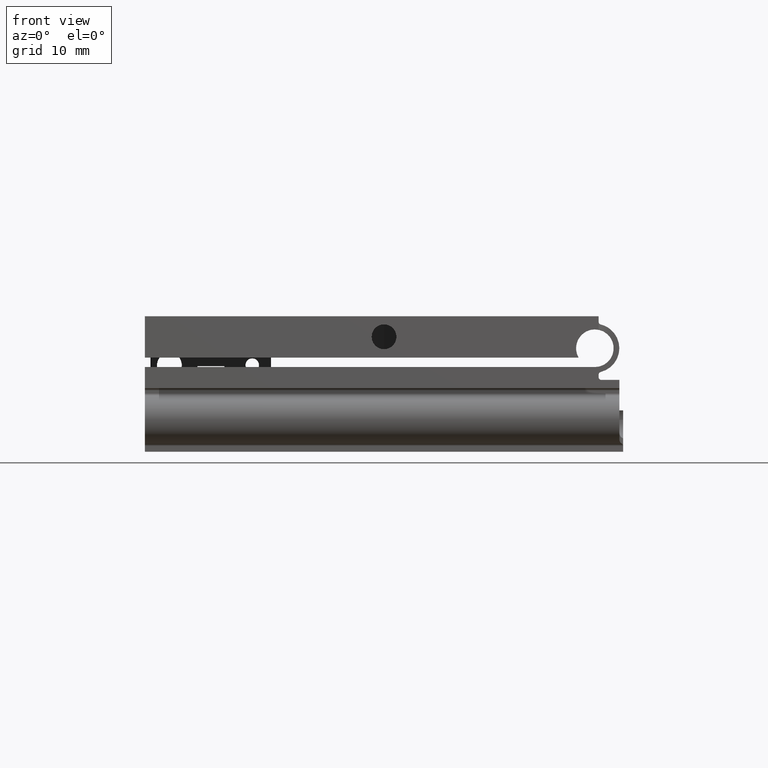
[diagram: clean part render]
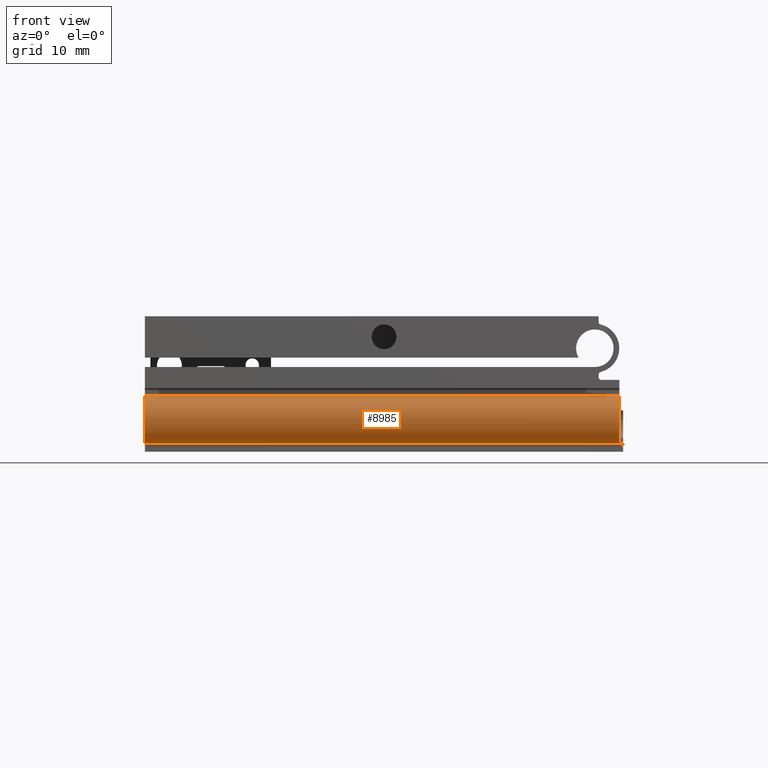
[diagram: same view with one face highlighted and labeled with its STEP entity id]
A machine part, front view. The second image highlights one B-rep face of the part: STEP entity #8985.
In plain terms, the highlighted cylindrical surface (edge-blend (fillet) strip) has radius 3.25 mm, axis along (1, -0, 0).
Its self-contained STEP definition (entity closure, byte-faithful):
#529 = CARTESIAN_POINT ( 'NONE',  ( -31.75000000000000711, -28.00000000000000000, -4.749999999999997335 ) ) ;
#532 = VECTOR ( 'NONE', #6582, 1000.000000000000000 ) ;
#621 = ORIENTED_EDGE ( 'NONE', *, *, #9355, .T. ) ;
#712 = ORIENTED_EDGE ( 'NONE', *, *, #4942, .T. ) ;
#772 = ORIENTED_EDGE ( 'NONE', *, *, #4833, .T. ) ;
#1727 = EDGE_CURVE ( 'NONE', #6377, #6470, #8754, .T. ) ;
#2528 = CARTESIAN_POINT ( 'NONE',  ( 31.57500543228292145, -28.76736111111111782, -7.908109707586850057 ) ) ;
#2570 = CARTESIAN_POINT ( 'NONE',  ( -31.75000000000000711, -28.76736111111111427, -1.591890292413145280 ) ) ;
#2584 = CARTESIAN_POINT ( 'NONE',  ( 31.37706603401727889, -29.18337723049482690, -7.785977819579875892 ) ) ;
#2730 = EDGE_CURVE ( 'NONE', #9700, #6377, #7369, .T. ) ;
#2926 = DIRECTION ( 'NONE',  ( 0.000000000000000000, 1.000000000000000000, 0.000000000000000000 ) ) ;
#3319 = VERTEX_POINT ( 'NONE', #8798 ) ;
#3402 = VERTEX_POINT ( 'NONE', #6813 ) ;
#3447 = DIRECTION ( 'NONE',  ( -1.000000000000000000, 5.551115123125782702E-17, -1.232595164407830946E-32 ) ) ;
#3501 = DIRECTION ( 'NONE',  ( 0.000000000000000000, 1.000000000000000000, 0.000000000000000000 ) ) ;
#3542 = ORIENTED_EDGE ( 'NONE', *, *, #1727, .T. ) ;
#4015 = B_SPLINE_CURVE_WITH_KNOTS ( 'NONE', 3,
 ( #6452, #9530, #2584, #5739, #6397, #4316 ),
 .UNSPECIFIED., .F., .F.,
 ( 4, 2, 4 ),
 ( 0.000000000000000000, 0.0007118922461806589681, 0.001423784492361317936 ),
 .UNSPECIFIED. ) ;
#4112 = CARTESIAN_POINT ( 'NONE',  ( 31.25000000000002132, -28.00000000000000355, -4.749999999999997335 ) ) ;
#4316 = CARTESIAN_POINT ( 'NONE',  ( 31.25000000000001421, -29.99999999999997513, -7.311737691489918589 ) ) ;
#4707 = AXIS2_PLACEMENT_3D ( 'NONE', #4112, #3447, #3501 ) ;
#4780 = DIRECTION ( 'NONE',  ( 1.000000000000000000, -5.551115123125782702E-17, 1.232595164407830946E-32 ) ) ;
#4814 = CARTESIAN_POINT ( 'NONE',  ( -31.75000000000000711, -28.76736111111111072, -1.591890292413144614 ) ) ;
#4833 = EDGE_CURVE ( 'NONE', #3402, #3319, #7928, .T. ) ;
#4942 = EDGE_CURVE ( 'NONE', #6470, #3402, #4015, .T. ) ;
#5261 = ORIENTED_EDGE ( 'NONE', *, *, #2730, .T. ) ;
#5535 = DIRECTION ( 'NONE',  ( 0.000000000000000000, 1.000000000000000000, 0.000000000000000000 ) ) ;
#5677 = DIRECTION ( 'NONE',  ( -1.000000000000000000, 5.551115123125782702E-17, -1.232595164407830946E-32 ) ) ;
#5739 = CARTESIAN_POINT ( 'NONE',  ( 31.27141869312925238, -29.60716026191370531, -7.584533274308142836 ) ) ;
#5755 = DIRECTION ( 'NONE',  ( 1.000000000000000000, -5.551115123125782702E-17, 1.232595164407830946E-32 ) ) ;
#5983 = FACE_OUTER_BOUND ( 'NONE', #8009, .T. ) ;
#6377 = VERTEX_POINT ( 'NONE', #8422 ) ;
#6397 = CARTESIAN_POINT ( 'NONE',  ( 31.25000000000000711, -29.81023702222723415, -7.459889454570991951 ) ) ;
#6441 = LINE ( 'NONE', #2570, #7720 ) ;
#6452 = CARTESIAN_POINT ( 'NONE',  ( 31.57500543228292145, -28.76736111111111782, -7.908109707586850057 ) ) ;
#6470 = VERTEX_POINT ( 'NONE', #2528 ) ;
#6580 = AXIS2_PLACEMENT_3D ( 'NONE', #529, #5755, #2926 ) ;
#6582 = DIRECTION ( 'NONE',  ( 1.000000000000000000, -5.551115123125782702E-17, 1.232595164407830946E-32 ) ) ;
#6813 = CARTESIAN_POINT ( 'NONE',  ( 31.25000000000001421, -29.99999999999997513, -7.311737691489918589 ) ) ;
#7211 = AXIS2_PLACEMENT_3D ( 'NONE', #8619, #4780, #5535 ) ;
#7369 = CIRCLE ( 'NONE', #7211, 3.249999999999999556 ) ;
#7720 = VECTOR ( 'NONE', #5677, 1000.000000000000000 ) ;
#7928 = CIRCLE ( 'NONE', #4707, 3.249999999999999556 ) ;
#8009 = EDGE_LOOP ( 'NONE', ( #5261, #3542, #712, #772, #621 ) ) ;
#8028 = CYLINDRICAL_SURFACE ( 'NONE', #6580, 3.249999999999999556 ) ;
#8422 = CARTESIAN_POINT ( 'NONE',  ( -31.75000000000000711, -28.76736111111111072, -7.908109707586850057 ) ) ;
#8619 = CARTESIAN_POINT ( 'NONE',  ( -31.75000000000000711, -28.00000000000000000, -4.749999999999997335 ) ) ;
#8754 = LINE ( 'NONE', #9611, #532 ) ;
#8798 = CARTESIAN_POINT ( 'NONE',  ( 31.25000000000000711, -28.76736111111111782, -1.591890292413145280 ) ) ;
#8985 = ADVANCED_FACE ( 'NONE', ( #5983 ), #8028, .T. ) ;
#9355 = EDGE_CURVE ( 'NONE', #3319, #9700, #6441, .T. ) ;
#9530 = CARTESIAN_POINT ( 'NONE',  ( 31.45870090299696642, -28.97258075952401768, -7.858245202547760044 ) ) ;
#9611 = CARTESIAN_POINT ( 'NONE',  ( -31.75000000000000711, -28.76736111111111072, -7.908109707586850057 ) ) ;
#9700 = VERTEX_POINT ( 'NONE', #4814 ) ;